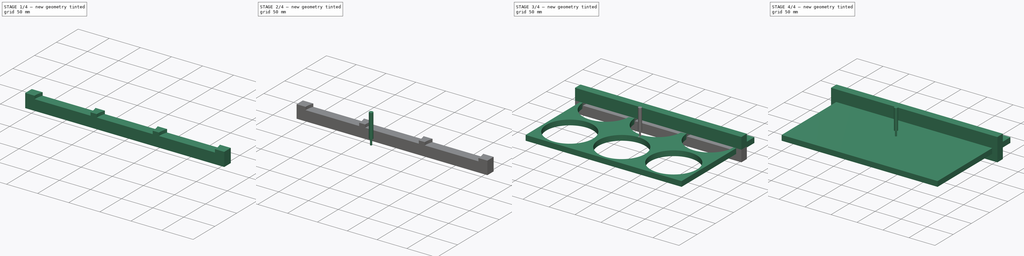
[diagram: build sequence overview — one tinted view per stage of 4, left to right]
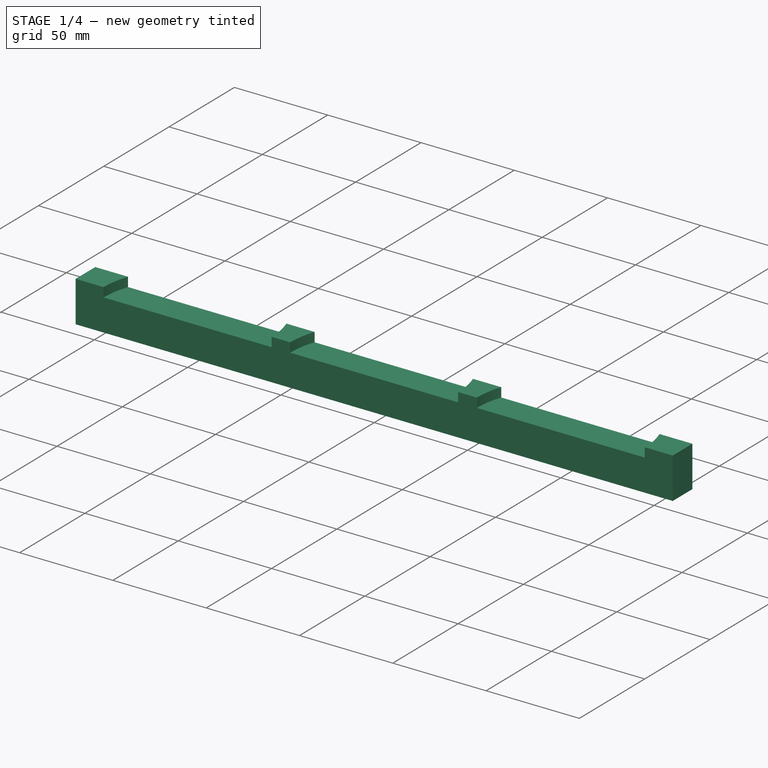
[diagram: stage 1 of 4 — iso view after this stage's code; geometry added in this stage tinted green]
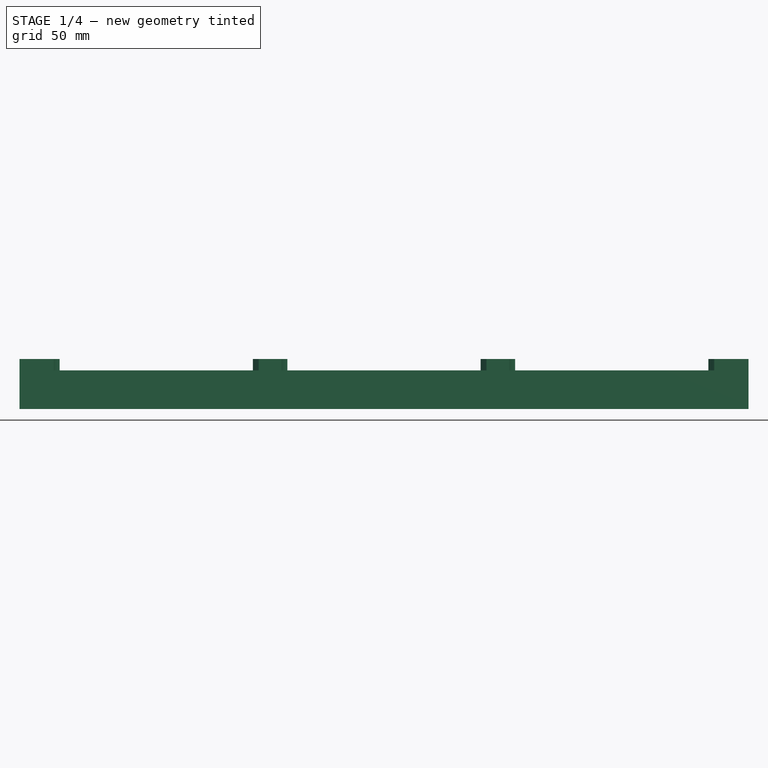
[diagram: stage 1 of 4 — front view after this stage's code; geometry added in this stage tinted green]
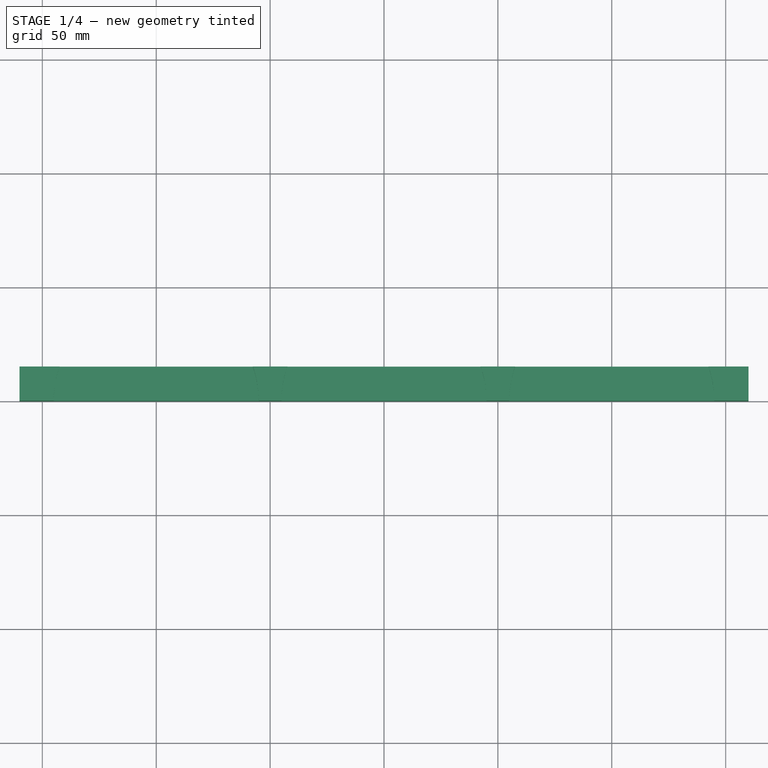
[diagram: stage 1 of 4 — top view after this stage's code; geometry added in this stage tinted green]
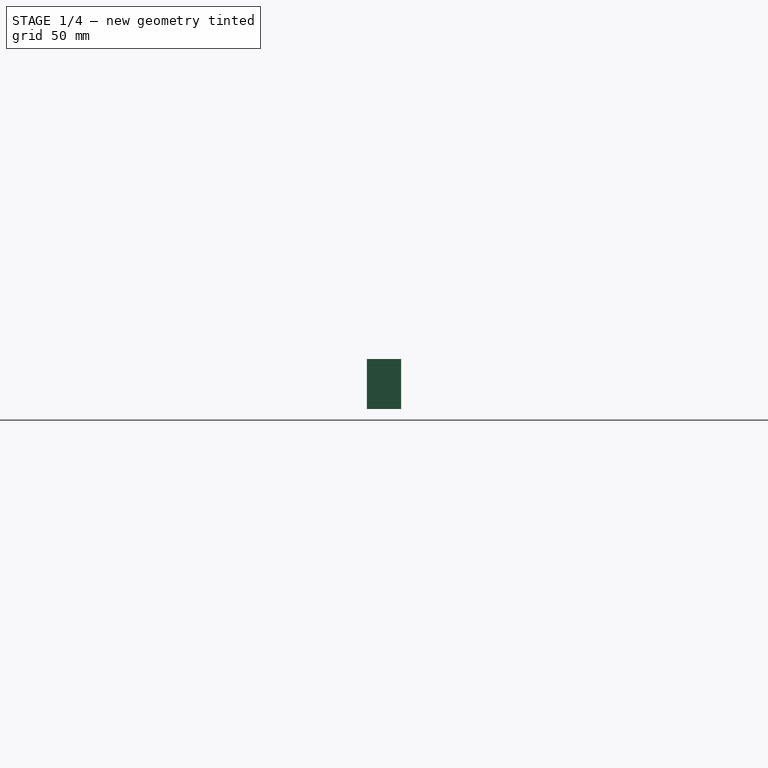
[diagram: stage 1 of 4 — right view after this stage's code; geometry added in this stage tinted green]
FCSTD DOCUMENT  (FreeCAD 0.20RUnknown)
Label: FloatChamber
License: All rights reserved
LicenseURL: http://en.wikipedia.org/wiki/All_rights_reserved
objects: Part::FeaturePython×6, App::DocumentObjectGroup×6, Path::FeaturePython×6, Sketcher::SketchObject×3, PartDesign::Pad×2, PartDesign::Body×2, App::FeaturePython×2, PartDesign::Pocket×1
note: 19 computed .brp shape members not serialized (recipe doc carries the construction recipe); baked Part::Feature solids carry a one-line shape summary decoded from their .brp

FEATURE [Path::FeaturePython] Profile  # Path/CAM operation (typed FeaturePython)
  Active = true
  AreaParams:
    Tolerance = 1e-07
    FitArcs = True
    Simplify = False
    CleanDistance = 0.0
    Accuracy = 0.01
    Unit = 1.0
    MinArcPoints = 4
    MaxArcPoints = 100
    ClipperScale = 10000000.0
    Fill = 0
    Coplanar = 0
    Reorient = True
    Outline = False
    Explode = False
    OpenMode = 0
    Deflection = 0.01
    SubjectFill = 0
    ClipFill = 0
    Offset = -1.5
    ExtraPass = 0
    Stepover = 0.0
    LastStepover = 0.0
    JoinType = 0
    EndType = 0
    MiterLimit = 2.0
    RoundPrecision = 0.0
    PocketMode = 0
    ToolRadius = 1.0
    PocketExtraOffset = 0.0
    PocketStepover = 0.0
    PocketLastStepover = 0.0
    FromCenter = False
    Angle = 45.0
    AngleShift = 0.0
    Shift = 0.0
    Thicken = False
    SectionCount = -1
    Stepdown = 1.0
    SectionOffset = 0.0
    SectionTolerance = 1e-06
    SectionMode = 2
    Project = False
  Base = -> [Clone]
  ClearanceHeight = 5
  CoolantMode = 0
  CycleTime = 00:01:46
  Direction = 0
  FinalDepth = -2
  HandleMultipleFeatures = 0
  JoinType = 0
  MiterLimit = 0.1
  OffsetExtra = 0
  OpFinalDepth = 0
  OpStartDepth = 3
  OpStockZMax = 0
  OpStockZMin = -10
  OpToolDiameter = 3
  PathParams = {'orientation': 1, 'feedrate': 15.0, 'feedrate_v': 5.0, 'verbose': True, 'resume_height': 3.0, 'retraction': 5.0, 'return_end': True, 'preamble': False, 'start': Vector (57.48537597993153, -40.795218947760674, 5.0)}
  SafeHeight = 3
  Side = 1
  SplitArcs = false
  StartDepth = 0
  StartPoint = (0,0,0)
  StepDown = 3
  ToolController = -> _mm_Endmill
  UseComp = true
  UseStartPoint = false
  processCircles = false
  processHoles = false
  processPerimeter = true
  expr: ClearanceHeight = OpStockZMax + SetupSheet.ClearanceHeightOffset
  expr: FinalDepth = -2
  expr: SafeHeight = OpStockZMax + SetupSheet.SafeHeightOffset
  expr: StartDepth = 0
  expr: StepDown = OpToolDiameter
FEATURE [Sketcher::SketchObject] Sketch001
  FullyConstrained = true
  MapMode = 5
  Support = -> [XY_Plane001]
  sketch-geometry (4):
    g0: LineSegment StartX=-160 StartY=65 StartZ=0 EndX=160 EndY=65 EndZ=0
    g1: LineSegment StartX=160 StartY=65 StartZ=0 EndX=160 EndY=50 EndZ=0
    g2: LineSegment StartX=160 StartY=50 StartZ=0 EndX=-160 EndY=50 EndZ=0
    g3: LineSegment StartX=-160 StartY=50 StartZ=0 EndX=-160 EndY=65 EndZ=0
  constraints (12):
    c: Coincident(g0,g1)
    c: Coincident(g1,g2)
    c: Coincident(g2,g3)
    c: Coincident(g3,g0)
    c: Horizontal(g0)
    c: Horizontal(g2)
    c: Vertical(g1)
    c: Vertical(g3)
    c: DistanceY(g-1,g2) = 50
    c: DistanceX(g0,g0) = 320
    c: DistanceX(g-1,g1) = 160
    c: DistanceY(g3,g3) = 15
FEATURE [PartDesign::Pad] Pad001
  Direction = (0,0,1)
  Length = 22
  Length2 = 10
  Profile = -> Sketch001
  ReferenceAxis = -> Sketch001 [N_Axis]
  Reversed = true
  Type = 0
FEATURE [Sketcher::SketchObject] Sketch002
  FullyConstrained = true
  MapMode = 5
  Support = -> [Pad001]
  sketch-geometry (4):
    g0: LineSegment StartX=-160 StartY=50 StartZ=0 EndX=160 EndY=50 EndZ=0
    g1: Circle CenterX=-100 CenterY=50 CenterZ=0 NormalX=0 NormalY=0 NormalZ=1 AngleXU=0 Radius=45
    g2: Circle CenterX=0 CenterY=50 CenterZ=0 NormalX=0 NormalY=0 NormalZ=1 AngleXU=0 Radius=45
    g3: Circle CenterX=100 CenterY=50 CenterZ=0 NormalX=0 NormalY=0 NormalZ=1 AngleXU=0 Radius=45
  constraints (13):
    c: Horizontal(g0)
    c: DistanceY(g-1,g0) = 50
    c: DistanceX(g0,g-1) = 160
    c: DistanceX(g0,g0) = 320
    c: PointOnObject(g1,g0)
    c: PointOnObject(g2,g0)
    c: PointOnObject(g3,g0)
    c: DistanceX(g1,g-1) = 100
    c: DistanceX(g-1,g3) = 100
    c: Diameter(g1) = 90
    c: Equal(g1,g2)
    c: Equal(g2,g3)
    c: PointOnObject(g2,g-2)
FEATURE [PartDesign::Pocket] Pocket
  BaseFeature = -> Pad001
  Direction = (0,0,-1)
  Length = 5
  Length2 = 5
  Profile = -> Sketch002
  ReferenceAxis = -> Sketch002 [N_Axis]
  Type = 0
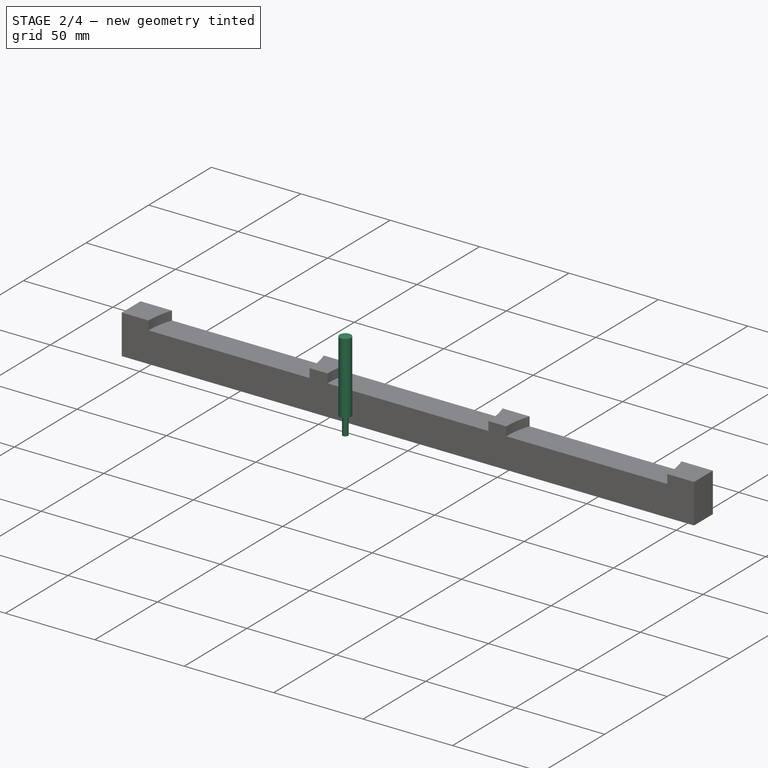
[diagram: stage 2 of 4 — iso view after this stage's code; geometry added in this stage tinted green]
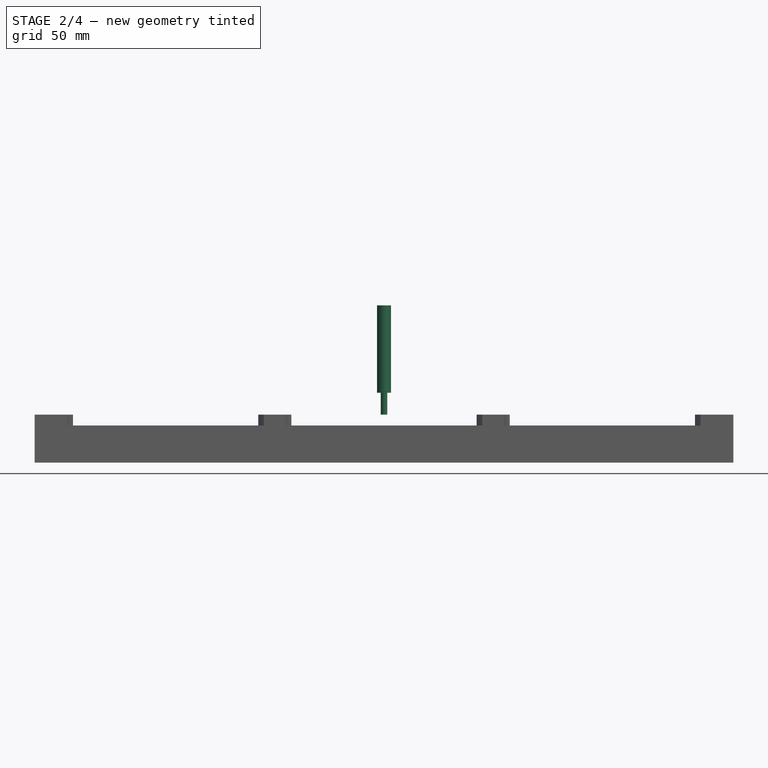
[diagram: stage 2 of 4 — front view after this stage's code; geometry added in this stage tinted green]
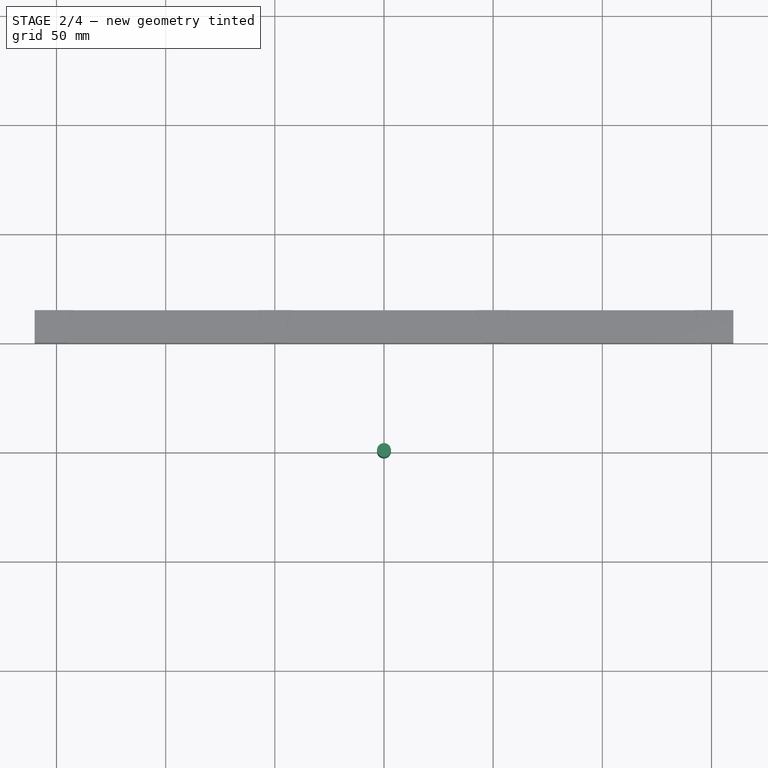
[diagram: stage 2 of 4 — top view after this stage's code; geometry added in this stage tinted green]
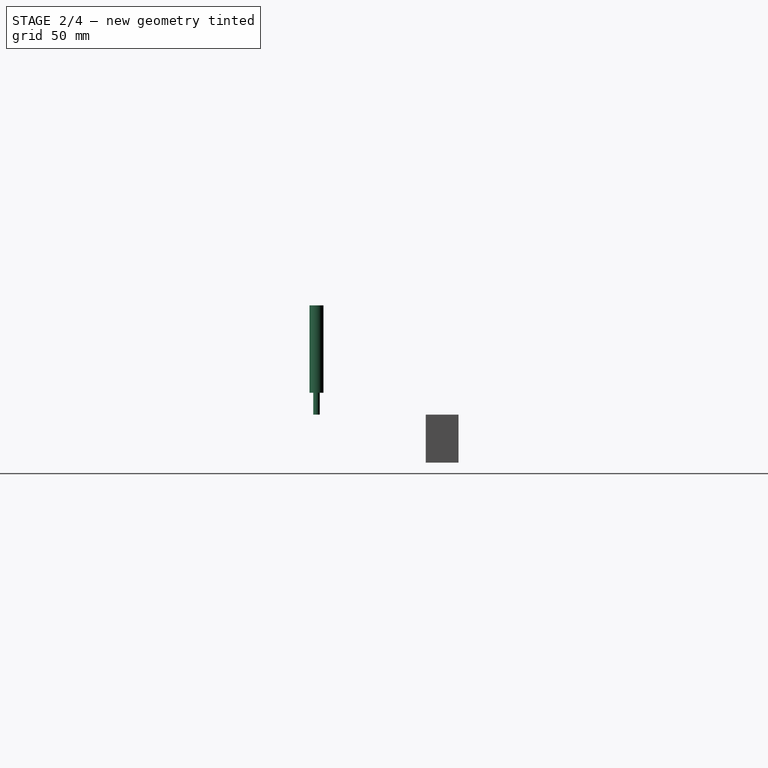
[diagram: stage 2 of 4 — right view after this stage's code; geometry added in this stage tinted green]
FEATURE [App::DocumentObjectGroup] Model
  Group = -> [Clone]
FEATURE [Part::FeaturePython] ToolBit001  label="3mm_Endmill"  # Path/CAM toolbit (typed FeaturePython)
  BitPropertyNames = Chipload | CuttingEdgeHeight | Diameter | Flutes | Length | Material | ShankDiameter | SpindleDirection
  BitShape = <path>
  Chipload = 0
  CuttingEdgeHeight = 10
  Diameter = 3
  File = <userpath>/Documents/Sherline/FreeCAD/Bit/3mm_Endmill.fctb
  Flutes = 0
  Length = 50
  Material = 0
  ShankDiameter = 6.4
  ShapeName = endmill
  SpindleDirection = 0
FEATURE [Part::FeaturePython] ToolBit002  label="3mm_Endmill002"  # Path/CAM toolbit (typed FeaturePython)
  BitPropertyNames = Chipload | CuttingEdgeHeight | Diameter | Flutes | Length | Material | ShankDiameter | SpindleDirection
  BitShape = <path>
  Chipload = 0
  CuttingEdgeHeight = 10
  Diameter = 3
  File = <userpath>/Documents/Sherline/FreeCAD/Bit/3mm_Endmill.fctb
  Flutes = 0
  Length = 50
  Material = 0
  ShankDiameter = 6.4
  ShapeName = endmill
  SpindleDirection = 0
FEATURE [Path::FeaturePython] _mm_Endmill002  label="3mm_Endmill003"  # Path/CAM operation (typed FeaturePython)
  HorizFeed = 15
  HorizRapid = 0
  SpindleDir = 0
  SpindleSpeed = 12000
  Tool = -> ToolBit002
  ToolNumber = 2
  VertFeed = 5
  VertRapid = 0
  expr: HorizRapid = SetupSheet001.HorizRapid
  expr: VertRapid = SetupSheet001.VertRapid
FEATURE [App::DocumentObjectGroup] Tools001
  Group = -> [_mm_Endmill002]
FEATURE [Path::FeaturePython] Job001  label="BridgeGrooves"  # Path/CAM operation (typed FeaturePython)
  CycleTime = 00:00:00
  Fixtures = G54
  GeometryTolerance = 0.01
  JobType = 0
  Model = -> Model001
  Operations = -> Operations001
  OrderOutputBy = 0
  PostProcessor = 2
  PostProcessorOutputFile = %D/%d-%j.ngc
  SetupSheet = -> SetupSheet001
  SplitOutput = false
  Stock = -> Stock002
  Tools = -> Tools001
FEATURE [Path::FeaturePython] Profile001  # Path/CAM operation (typed FeaturePython)
  Active = true
  AreaParams:
    Tolerance = 1e-07
    FitArcs = True
    Simplify = False
    CleanDistance = 0.0
    Accuracy = 0.01
    Unit = 1.0
    MinArcPoints = 4
    MaxArcPoints = 100
    ClipperScale = 10000000.0
    Fill = 0
    Coplanar = 0
    Reorient = True
    Outline = False
    Explode = False
    OpenMode = 0
    Deflection = 0.01
    SubjectFill = 0
    ClipFill = 0
    Offset = -1.5
    ExtraPass = 0
    Stepover = 0.0
    LastStepover = 0.0
    JoinType = 0
    EndType = 0
    MiterLimit = 2.0
    RoundPrecision = 0.0
    PocketMode = 0
    ToolRadius = 1.0
    PocketExtraOffset = 0.0
    PocketStepover = 0.0
    PocketLastStepover = 0.0
    FromCenter = False
    Angle = 45.0
    AngleShift = 0.0
    Shift = 0.0
    Thicken = False
    SectionCount = -1
    Stepdown = 1.0
    SectionOffset = 0.0
    SectionTolerance = 1e-06
    SectionMode = 2
    Project = False
  Base = -> [Body001]
  ClearanceHeight = 5
  CoolantMode = 0
  CycleTime = 00:02:55
  Direction = 0
  FinalDepth = -5
  HandleMultipleFeatures = 0
  JoinType = 0
  MiterLimit = 0.1
  OffsetExtra = 0
  OpFinalDepth = -5
  OpStartDepth = 0
  OpStockZMax = 0
  OpStockZMin = -10
  OpToolDiameter = 3
  PathParams = {'orientation': 1, 'feedrate': 15.0, 'feedrate_v': 5.0, 'verbose': True, 'resume_height': 3.0, 'retraction': 5.0, 'return_end': True, 'preamble': False}
  SafeHeight = 3
  Side = 1
  SplitArcs = false
  StartDepth = 0
  StartPoint = (0,0,0)
  StepDown = 2
  ToolController = -> _mm_Endmill
  UseComp = true
  UseStartPoint = false
  processCircles = false
  processHoles = false
  processPerimeter = true
  expr: ClearanceHeight = OpStockZMax + SetupSheet.ClearanceHeightOffset
  expr: FinalDepth = -5
  expr: SafeHeight = OpStockZMax + SetupSheet.SafeHeightOffset
  expr: StartDepth = 0
  expr: StepDown = 2
FEATURE [App::DocumentObjectGroup] Operations
  Group = -> [Profile,Profile001]
FEATURE [Path::FeaturePython] Job  label="BaseGrooves"  # Path/CAM operation (typed FeaturePython)
  CycleTime = 00:04:41
  Fixtures = G54
  GeometryTolerance = 0.01
  JobType = 0
  Model = -> Model
  Operations = -> Operations
  OrderOutputBy = 0
  PostProcessor = 2
  PostProcessorOutputFile = %D/%d-%j.ngc
  SetupSheet = -> SetupSheet
  SplitOutput = false
  Stock = -> Stock
  Tools = -> Tools
note: 2 file-system paths scrubbed to <path> (originals preserved in the JSON sidecar)
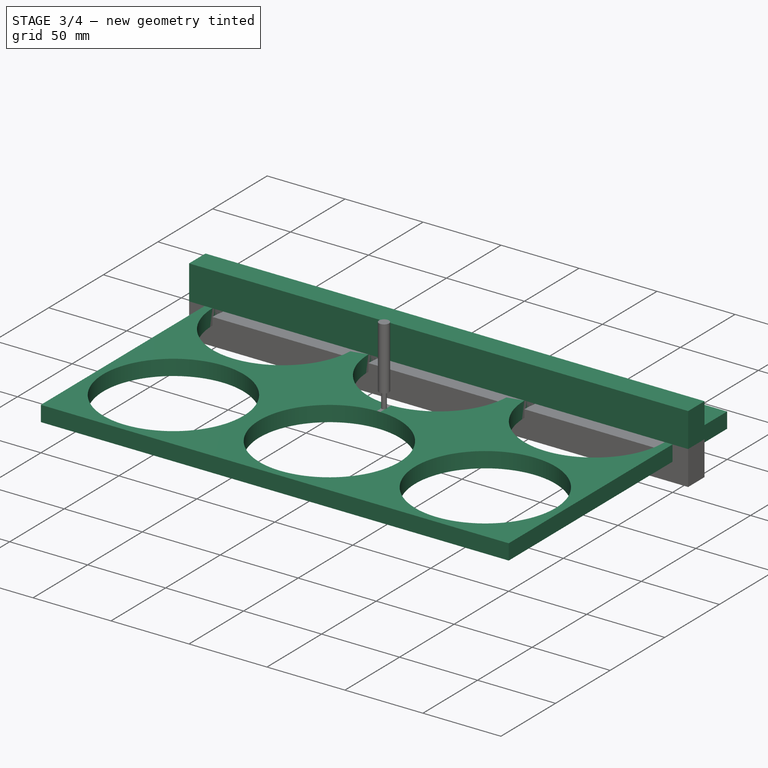
[diagram: stage 3 of 4 — iso view after this stage's code; geometry added in this stage tinted green]
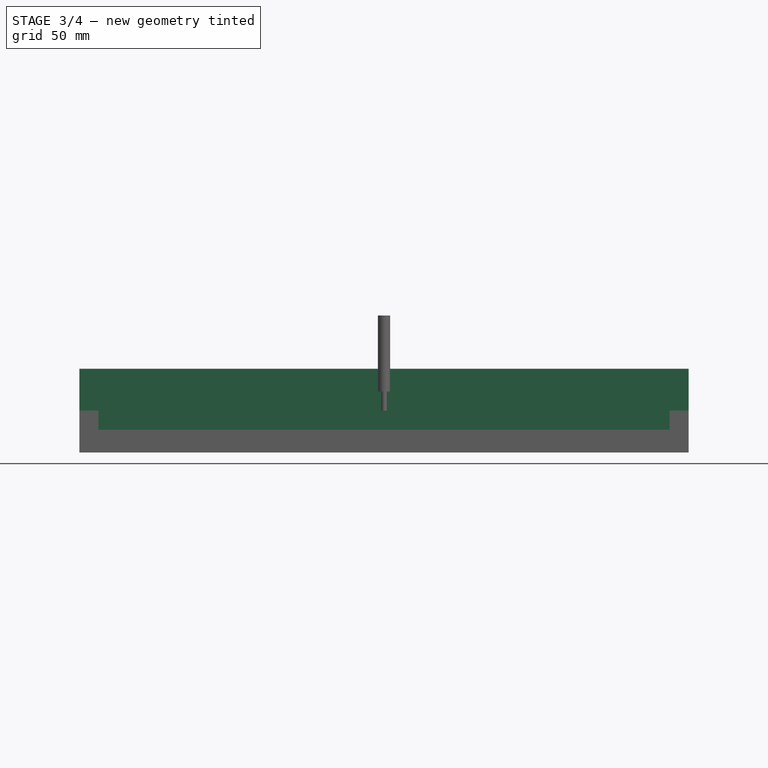
[diagram: stage 3 of 4 — front view after this stage's code; geometry added in this stage tinted green]
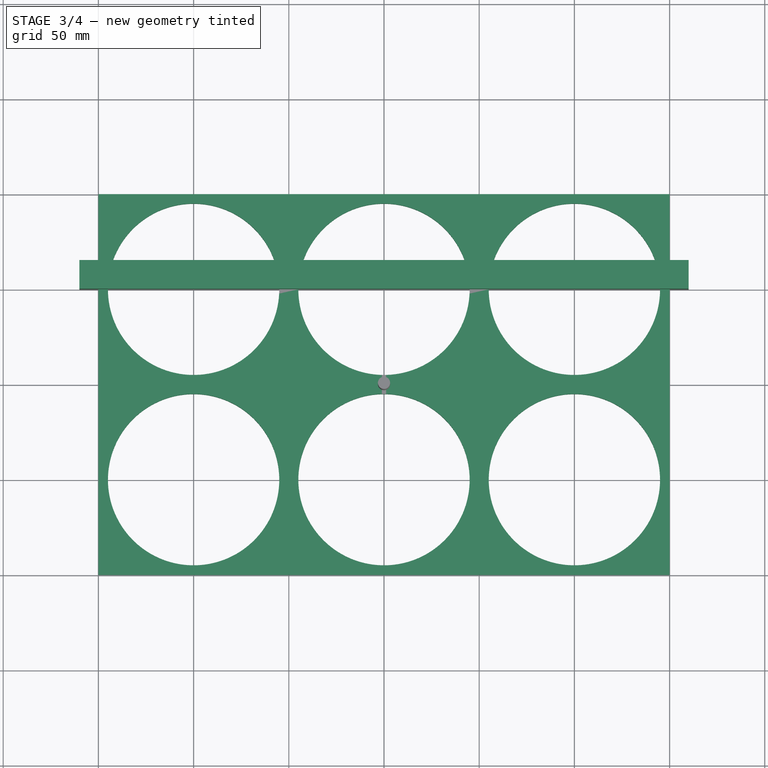
[diagram: stage 3 of 4 — top view after this stage's code; geometry added in this stage tinted green]
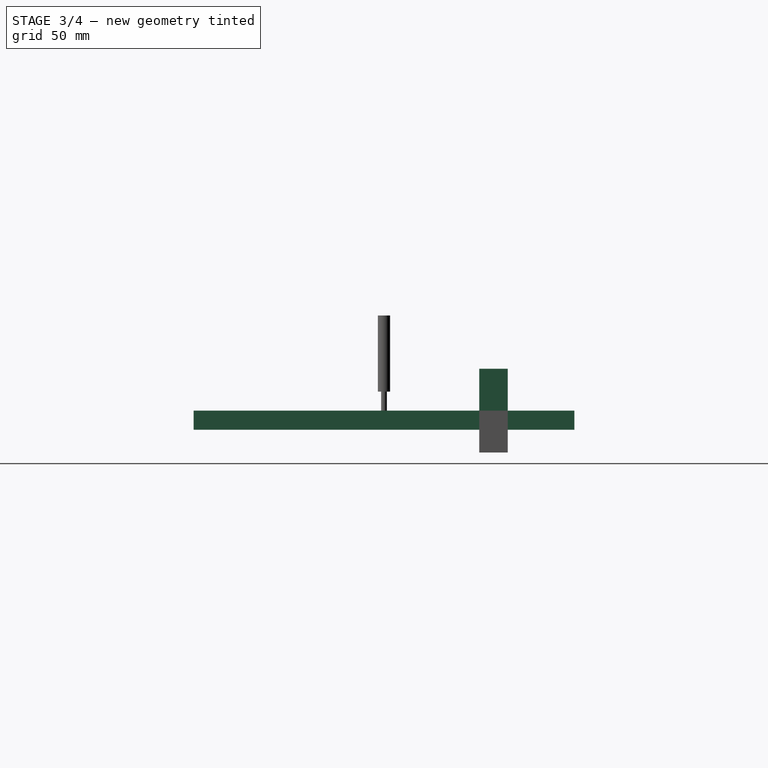
[diagram: stage 3 of 4 — right view after this stage's code; geometry added in this stage tinted green]
FEATURE [Sketcher::SketchObject] Sketch
  FullyConstrained = true
  MapMode = 5
  Support = -> [XY_Plane]
  sketch-geometry (15):
    g0: LineSegment StartX=-150 StartY=-100 StartZ=0 EndX=-150 EndY=100 EndZ=0
    g1: LineSegment StartX=-150 StartY=100 StartZ=0 EndX=150 EndY=100 EndZ=0
    g2: LineSegment StartX=150 StartY=100 StartZ=0 EndX=150 EndY=-100 EndZ=0
    g3: LineSegment StartX=150 StartY=-100 StartZ=0 EndX=-150 EndY=-100 EndZ=0
    g4: GeomPoint X=0 Y=0 Z=0
    g5: LineSegment StartX=-150 StartY=50 StartZ=0 EndX=150 EndY=50 EndZ=0
    g6: LineSegment StartX=-150 StartY=-50 StartZ=0 EndX=150 EndY=-50 EndZ=0
    g7: Circle CenterX=0 CenterY=50 CenterZ=0 NormalX=0 NormalY=0 NormalZ=1 AngleXU=0 Radius=45
    g8: Circle CenterX=-100 CenterY=50 CenterZ=0 NormalX=0 NormalY=0 NormalZ=1 AngleXU=0 Radius=45
    g9: Circle CenterX=100 CenterY=50 CenterZ=0 NormalX=0 NormalY=0 NormalZ=1 AngleXU=0 Radius=45
    g10: Circle CenterX=0 CenterY=-50 CenterZ=0 NormalX=0 NormalY=0 NormalZ=1 AngleXU=0 Radius=45
    g11: Circle CenterX=-100 CenterY=-50 CenterZ=0 NormalX=0 NormalY=0 NormalZ=1 AngleXU=0 Radius=45
    g12: Circle CenterX=100 CenterY=-50 CenterZ=0 NormalX=0 NormalY=0 NormalZ=1 AngleXU=0 Radius=45
    g13: LineSegment StartX=-100 StartY=100 StartZ=0 EndX=-100 EndY=-100 EndZ=0
    g14: LineSegment StartX=100 StartY=100 StartZ=0 EndX=100 EndY=-100 EndZ=0
  constraints (46):
    c: Coincident(g0,g1)
    c: Coincident(g1,g2)
    c: Coincident(g2,g3)
    c: Coincident(g3,g0)
    c: Horizontal(g1)
    c: Horizontal(g3)
    c: Vertical(g0)
    c: Vertical(g2)
    c: Symmetric(g1,g0,g4)
    c: Coincident(g4,g-1)
    c: DistanceX(g1,g1) = 300
    c: DistanceY(g2,g2) = 200
    c: PointOnObject(g5,g0)
    c: PointOnObject(g5,g2)
    c: Horizontal(g5)
    c: PointOnObject(g6,g0)
    c: PointOnObject(g6,g2)
    c: Horizontal(g6)
    c: DistanceY(g6,g4) = 50
    c: DistanceY(g4,g5) = 50
    c: PointOnObject(g7,g5)
    c: PointOnObject(g8,g5)
    c: PointOnObject(g9,g5)
    c: PointOnObject(g10,g6)
    c: PointOnObject(g11,g6)
    c: PointOnObject(g12,g6)
    c: Diameter(g12) = 90
    c: Equal(g12,g9)
    c: Equal(g9,g7)
    c: Equal(g7,g10)
    c: Equal(g10,g11)
    c: Equal(g11,g8)
    c: PointOnObject(g13,g1)
    c: PointOnObject(g13,g3)
    c: Vertical(g13)
    c: PointOnObject(g14,g1)
    c: PointOnObject(g14,g3)
    c: Vertical(g14)
    c: DistanceX(g13,g4) = 100
    c: DistanceX(g4,g14) = 100
    c: PointOnObject(g9,g14)
    c: PointOnObject(g8,g13)
    c: PointOnObject(g11,g13)
    c: PointOnObject(g12,g14)
    c: PointOnObject(g10,g-2)
    c: PointOnObject(g7,g-2)
FEATURE [PartDesign::Pad] Pad
  Direction = (0,0,1)
  Length = 10
  Length2 = 10
  Profile = -> Sketch
  ReferenceAxis = -> Sketch [N_Axis]
  Reversed = true
  Type = 0
FEATURE [PartDesign::Body] Body001  label="ClampBridge"
  Group = -> [Sketch001,Pad001,Sketch002,Pocket]
  Origin = -> Origin001
  Tip = -> Pocket
FEATURE [App::DocumentObjectGroup] Operations001
FEATURE [App::FeaturePython] SetupSheet001  # Path/CAM operation (typed FeaturePython)
  ClearanceHeightExpression = OpStockZMax+SetupSheet001.ClearanceHeightOffset
  ClearanceHeightOffset = 5
  CoolantMode = 0
  CoolantModes = None | Flood | Mist
  FinalDepthExpression = OpFinalDepth
  HorizRapid = 0
  SafeHeightExpression = OpStockZMax+SetupSheet001.SafeHeightOffset
  SafeHeightOffset = 3
  StartDepthExpression = OpStartDepth
  StepDownExpression = OpToolDiameter
  VertRapid = 0
FEATURE [Part::FeaturePython] Clone001  label="Model-ClampBridge"  # Draft clone (typed FeaturePython)
  AttacherType = Attacher::AttachEngine3D
  Fuse = false
  Objects = -> [Body001]
  PathResource = Model
  Scale = (1,1,1)
FEATURE [App::DocumentObjectGroup] Model001
  Group = -> [Clone001]
FEATURE [Part::FeaturePython] Stock002  # WARN: FeaturePython — macro-defined, semantics opaque (R4)
  Height = 22
  Length = 320
  Placement = pos=(-160,50,0) rot=(0,0,1;0rad)
  StockType = CreateBox
  Width = 15
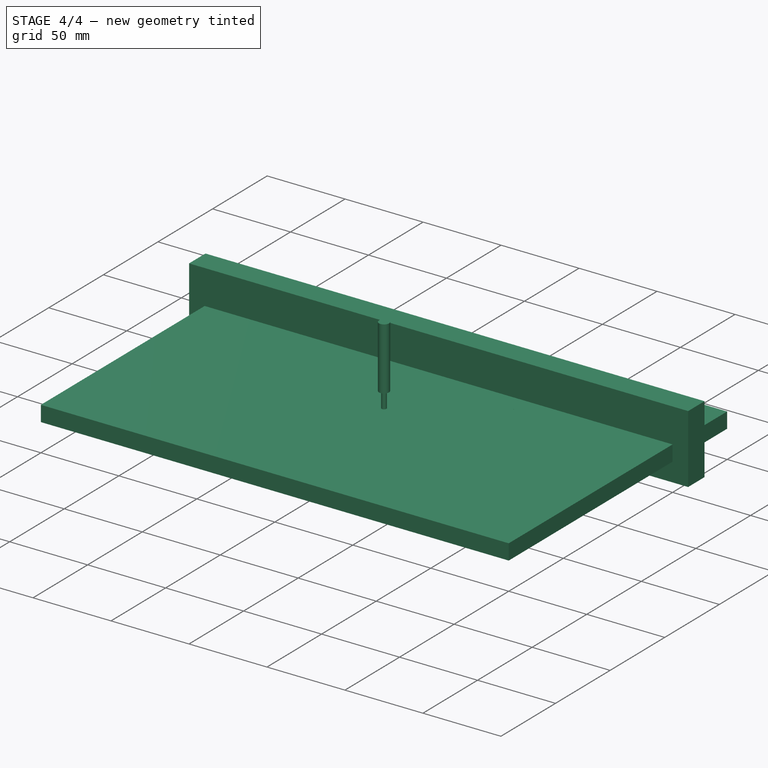
[diagram: stage 4 of 4 — iso view after this stage's code; geometry added in this stage tinted green]
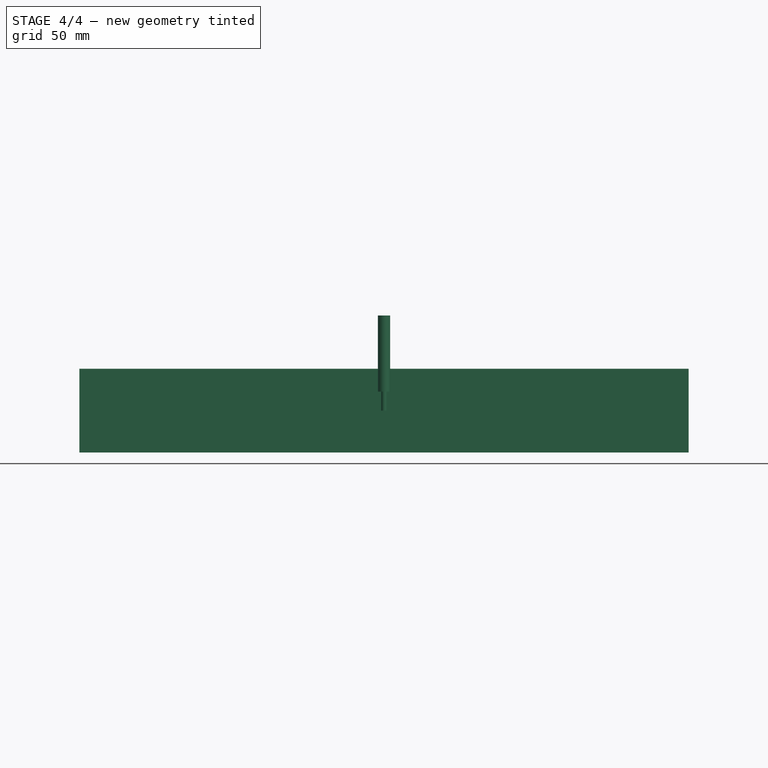
[diagram: stage 4 of 4 — front view after this stage's code; geometry added in this stage tinted green]
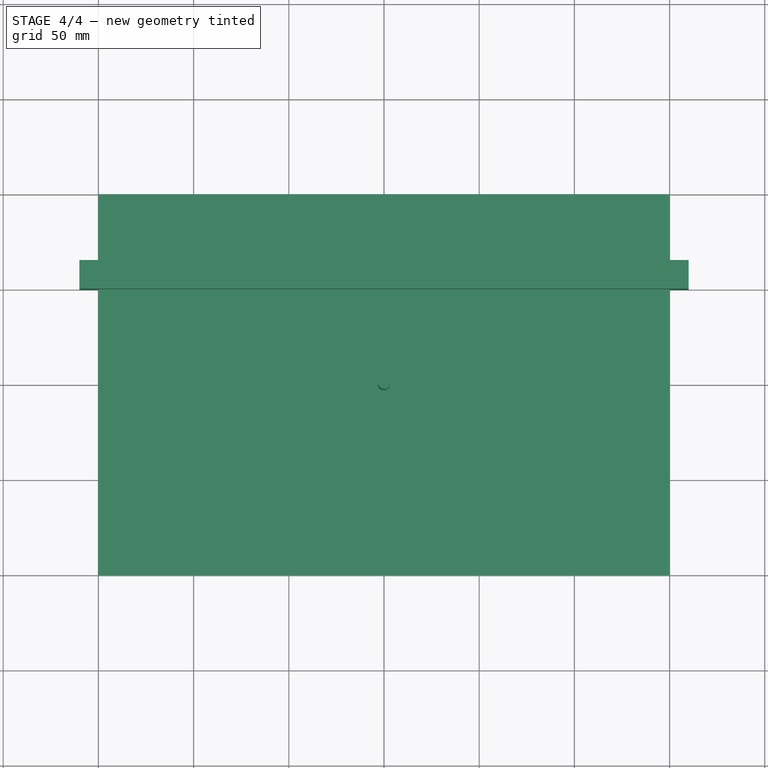
[diagram: stage 4 of 4 — top view after this stage's code; geometry added in this stage tinted green]
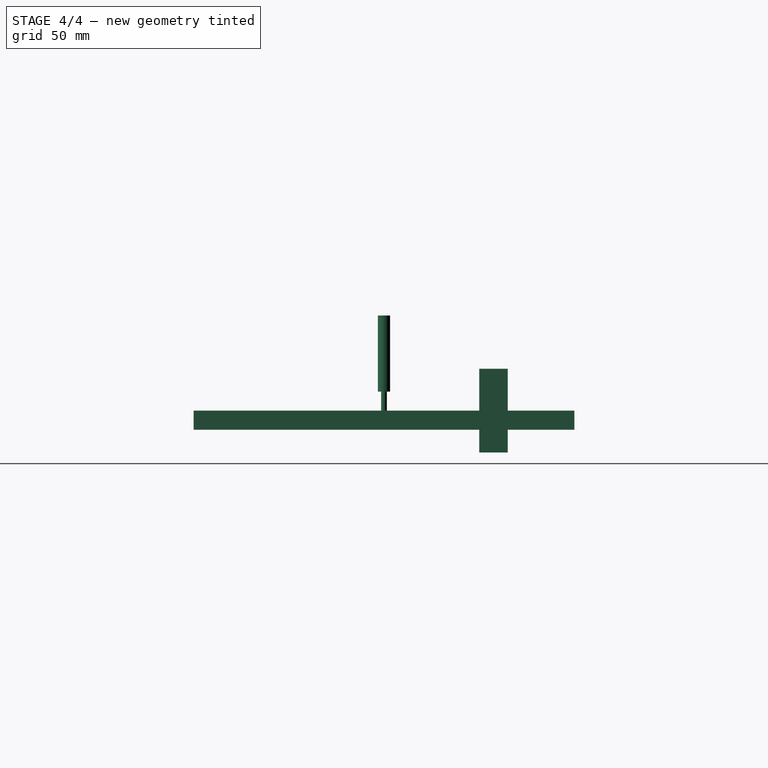
[diagram: stage 4 of 4 — right view after this stage's code; geometry added in this stage tinted green]
FEATURE [PartDesign::Body] Body  label="Base"
  Group = -> [Sketch,Pad]
  Origin = -> Origin
  Tip = -> Pad
FEATURE [App::FeaturePython] SetupSheet  # Path/CAM operation (typed FeaturePython)
  ClearanceHeightExpression = OpStockZMax+SetupSheet.ClearanceHeightOffset
  ClearanceHeightOffset = 5
  CoolantMode = 0
  CoolantModes = None | Flood | Mist
  FinalDepthExpression = OpFinalDepth
  HorizRapid = 0
  SafeHeightExpression = OpStockZMax+SetupSheet.SafeHeightOffset
  SafeHeightOffset = 3
  StartDepthExpression = OpStartDepth
  StepDownExpression = OpToolDiameter
  VertRapid = 0
FEATURE [Part::FeaturePython] Clone  label="Model-Base"  # Draft clone (typed FeaturePython)
  AttacherType = Attacher::AttachEngine3D
  Fuse = false
  Objects = -> [Body]
  PathResource = Model
  Scale = (1,1,1)
FEATURE [Path::FeaturePython] _mm_Endmill  label="3mm_Endmill001"  # Path/CAM operation (typed FeaturePython)
  HorizFeed = 15
  HorizRapid = 0
  SpindleDir = 0
  SpindleSpeed = 12000
  Tool = -> ToolBit001
  ToolNumber = 2
  VertFeed = 5
  VertRapid = 0
  expr: HorizRapid = SetupSheet.HorizRapid
  expr: VertRapid = SetupSheet.VertRapid
FEATURE [App::DocumentObjectGroup] Tools
  Group = -> [_mm_Endmill]
FEATURE [Part::FeaturePython] Stock  # WARN: FeaturePython — macro-defined, semantics opaque (R4)
  Height = 10
  Length = 300
  Placement = pos=(-150,-100,-10) rot=(0,0,1;0rad)
  StockType = CreateBox
  Width = 200
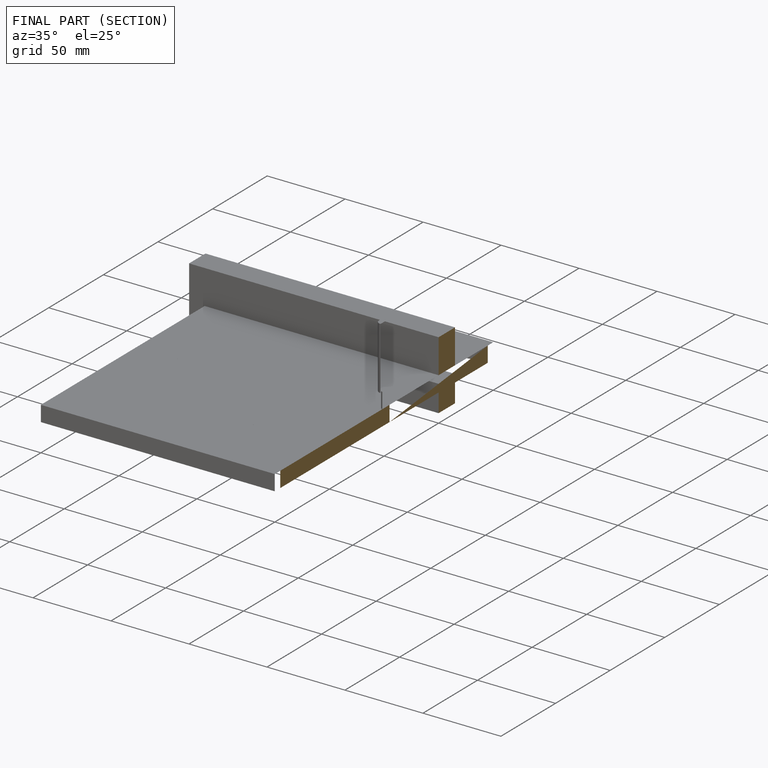
[diagram: finished part — half-section view (interior)]
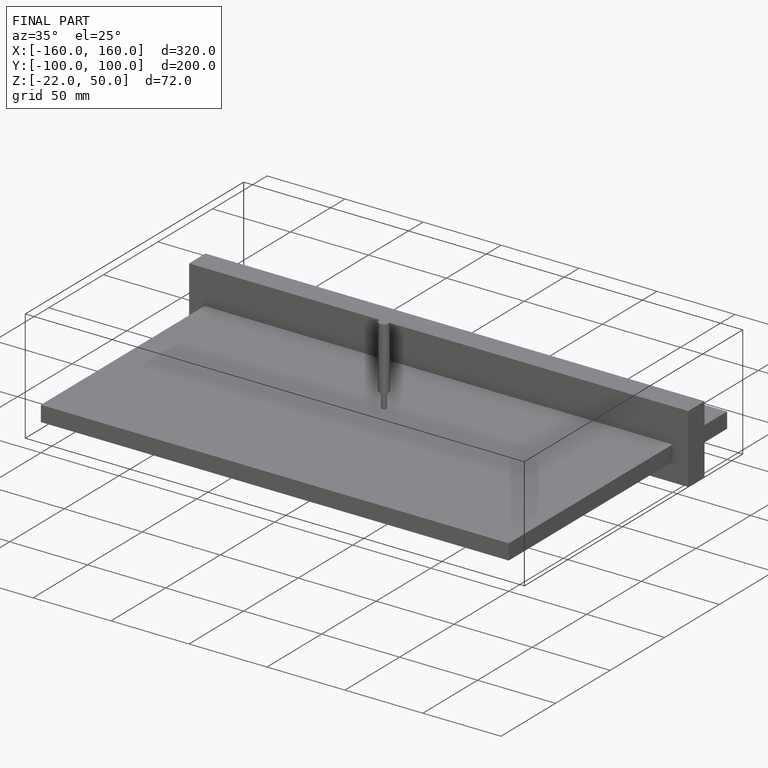
[diagram: finished part — iso view with bounding-box wireframe]
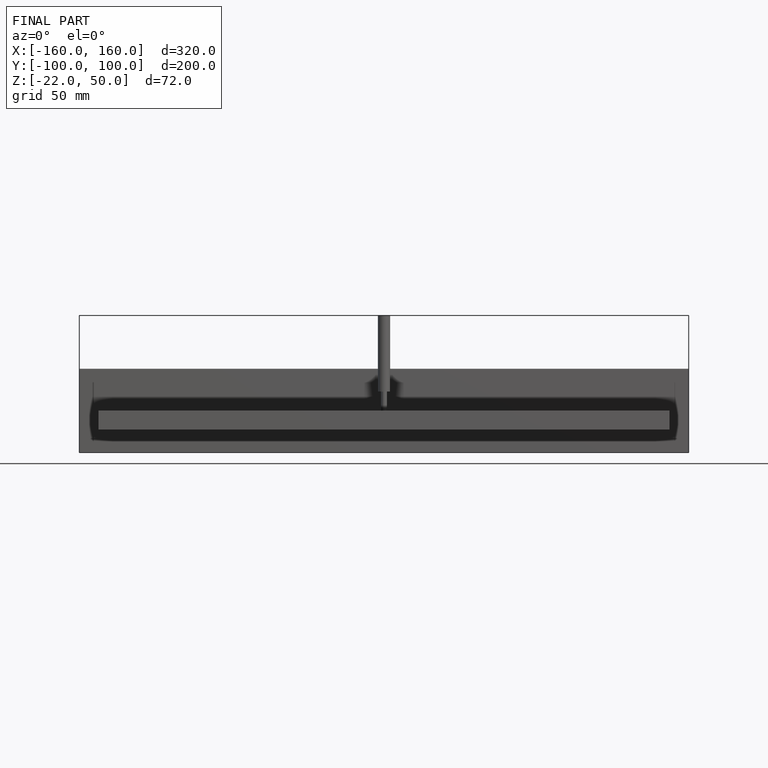
[diagram: finished part — front view with bounding-box wireframe]
